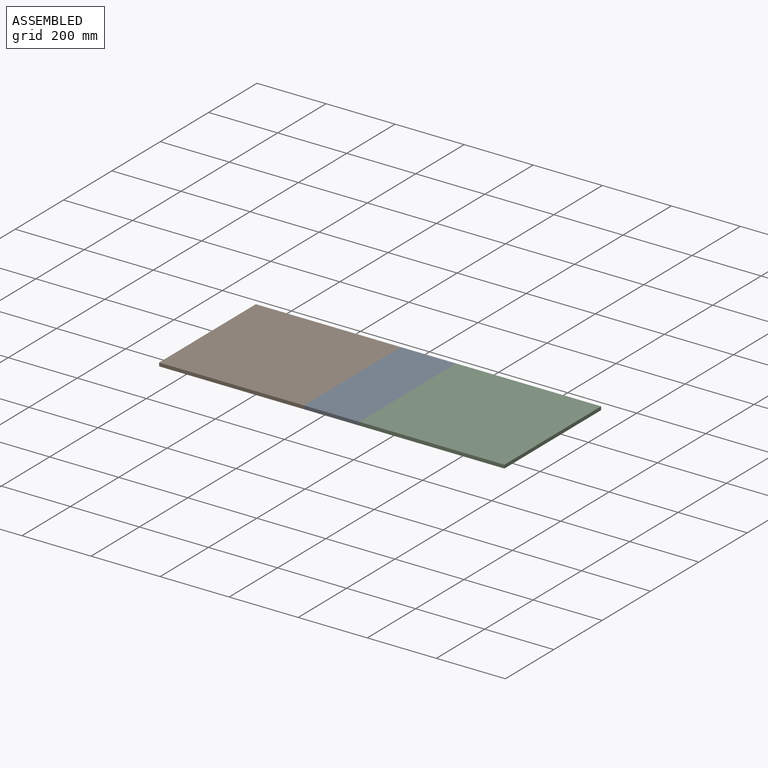
[diagram: assembled view]
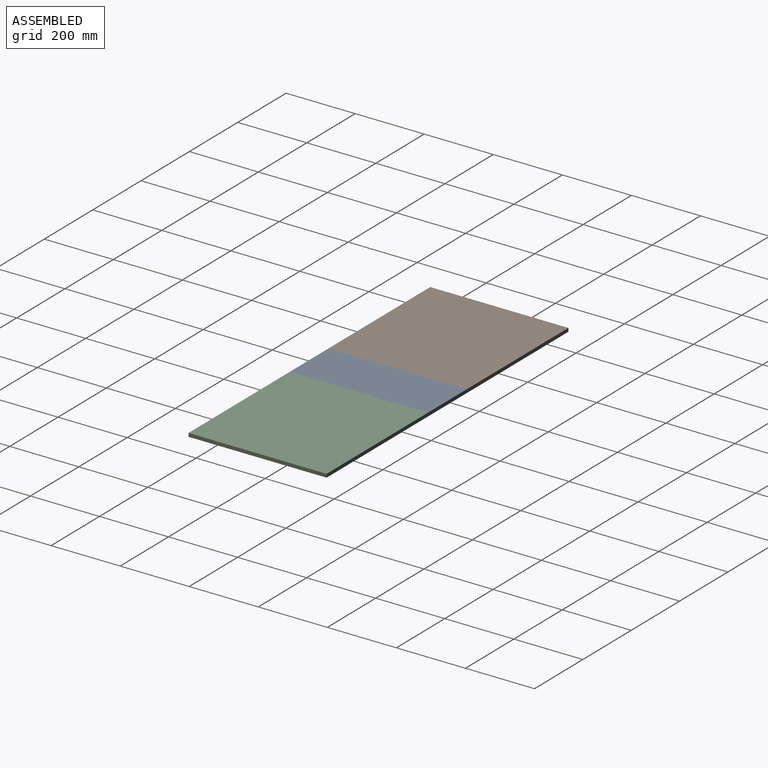
[diagram: assembled view, second angle]
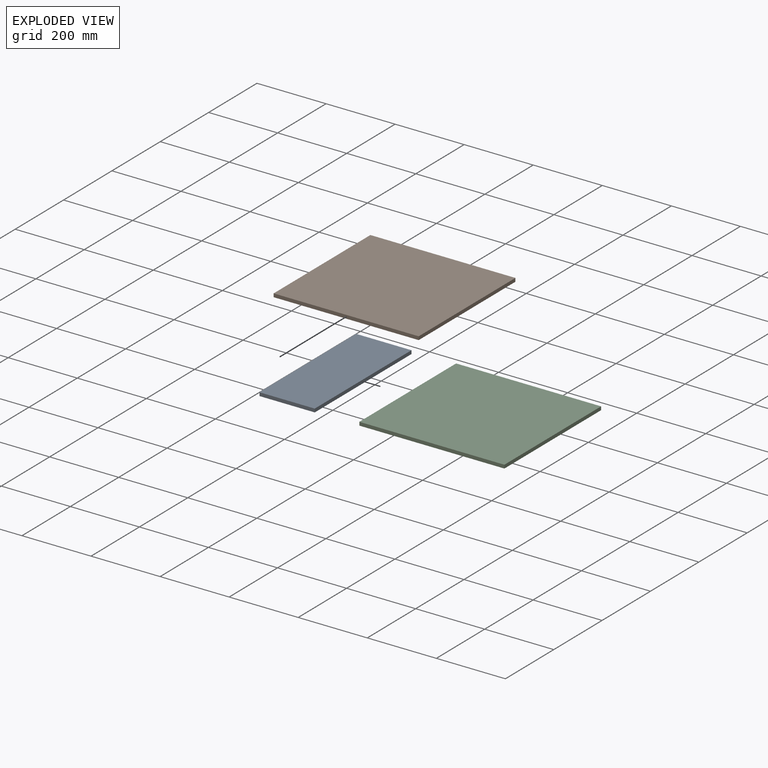
[diagram: exploded view]
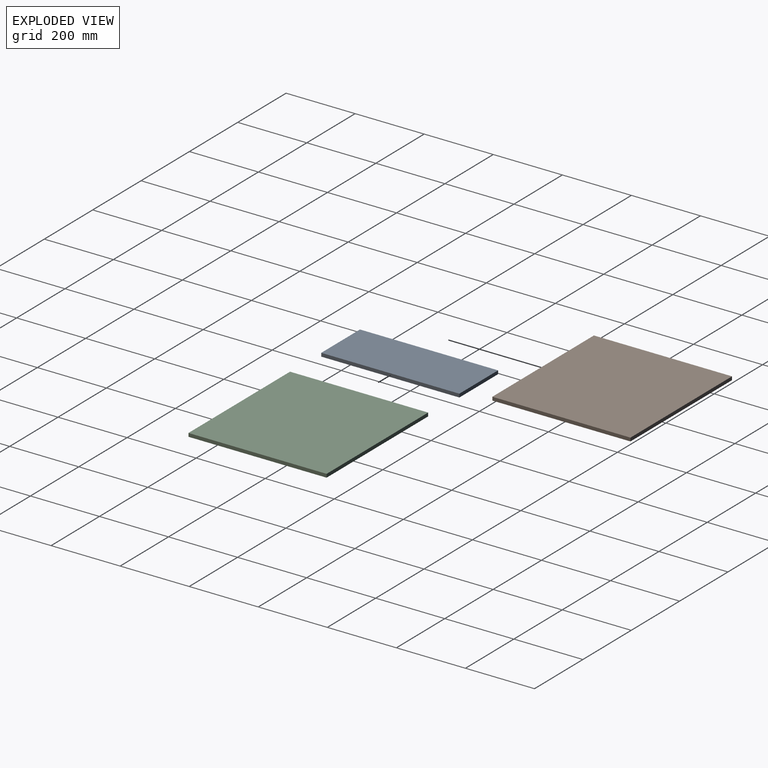
[diagram: exploded view, second angle]
ASSEMBLY  parts=3 mates=2
PART A: 6 faces, bbox 160x400x10 mm
  f0: plane 400x160mm, normal (0,0,-1), area 64000mm2, adj f1,f3,f4,f5
  f1: plane 160x10mm, normal (0,1,0), area 1600mm2, adj f0,f2,f4,f5
  f2: plane 400x160mm, normal (0,0,1), area 64000mm2, adj f1,f3,f4,f5
  f3: plane 160x10mm, normal (0,-1,0), area 1600mm2, adj f0,f2,f4,f5
  f4: plane 400x10mm, normal (1,0,0), area 4000mm2, adj f0,f1,f2,f3
  f5: plane 400x10mm, normal (-1,0,0), area 4000mm2, adj f0,f1,f2,f3
PART B: 6 faces, bbox 420x400x10 mm
  f0: plane 420x10mm, normal (0,-1,0), area 4200mm2, adj f2,f3,f4,f5
  f1: plane 420x10mm, normal (0,1,0), area 4200mm2, adj f2,f3,f4,f5
  f2: plane 420x400mm, normal (0,0,1), area 168000mm2, adj f0,f1,f4,f5
  f3: plane 420x400mm, normal (0,0,-1), area 168000mm2, adj f0,f1,f4,f5
  f4: plane 400x10mm, normal (-1,0,0), area 4000mm2, adj f0,f1,f2,f3
  f5: plane 400x10mm, normal (1,0,0), area 4000mm2, adj f0,f1,f2,f3
PART C: 6 faces, bbox 420x400x10 mm
  f0: plane 420x400mm, normal (0,0,-1), area 168000mm2, adj f1,f3,f4,f5
  f1: plane 420x10mm, normal (0,1,0), area 4200mm2, adj f0,f2,f4,f5
  f2: plane 420x400mm, normal (0,0,1), area 168000mm2, adj f1,f3,f4,f5
  f3: plane 420x10mm, normal (0,-1,0), area 4200mm2, adj f0,f2,f4,f5
  f4: plane 400x10mm, normal (1,0,0), area 4000mm2, adj f0,f1,f2,f3
  f5: plane 400x10mm, normal (-1,0,0), area 4000mm2, adj f0,f1,f2,f3
PLACE A t=(28.64,-9.54,-65.83)mm fixed
PLACE B t=(28.64,-9.54,-65.83)mm
PLACE C rot(axis=(0,0.99,-0.11),0deg) t=(28.64,-9.54,-65.83)mm
MATE revolute B.f0 <-> A.f3  axis (0,-1,0) through (361.24,-63.33,-65.83)mm
MATE revolute A.f3 <-> C.f3  axis (0,-1,0) through (521.24,-63.33,-65.83)mm
